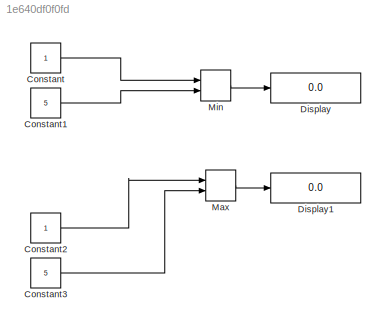
MODEL slx_1e640df0f0fd
KIND model
CONFIG AbsTol = auto
CONFIG EnableMultiTasking = off
CONFIG FixedStep = auto
CONFIG MaxStep = auto
CONFIG MinStep = auto
CONFIG RelTol = 1e-3
CONFIG SampleTimeConstraint = Unconstrained
CONFIG SolverName = VariableStepAuto
CONFIG StartTime = 0.0
CONFIG StopTime = 10.0
BLOCK [Constant] Constant
BLOCK [Constant] Constant1
  Value = 5
BLOCK [Constant] Constant2
BLOCK [Constant] Constant3
  Value = 5
BLOCK [Display] Display
  Decimation = 1
  Ports = [1]
BLOCK [Display] Display1
  Decimation = 1
  Ports = [1]
BLOCK [MinMax] Max
  Function = max
  Inputs = 2
  Ports = [2, 1]
BLOCK [MinMax] Min
  Inputs = 2
  Ports = [2, 1]
LINE Constant1:1 -> Min:2
LINE Constant2:1 -> Max:1
LINE Constant3:1 -> Max:2
LINE Constant:1 -> Min:1
LINE Max:1 -> Display1:1
LINE Min:1 -> Display:1
